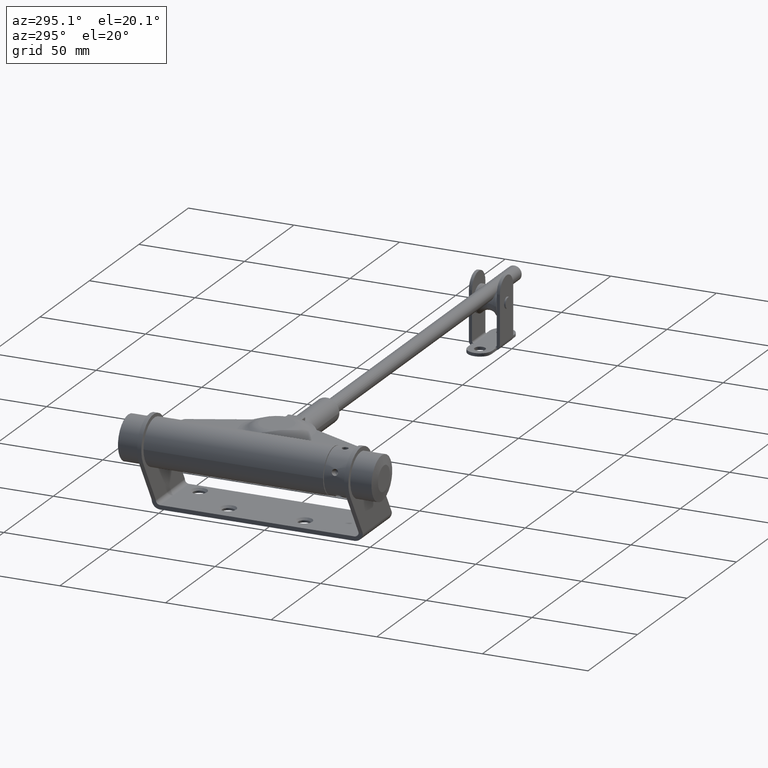
[diagram: clean part render]
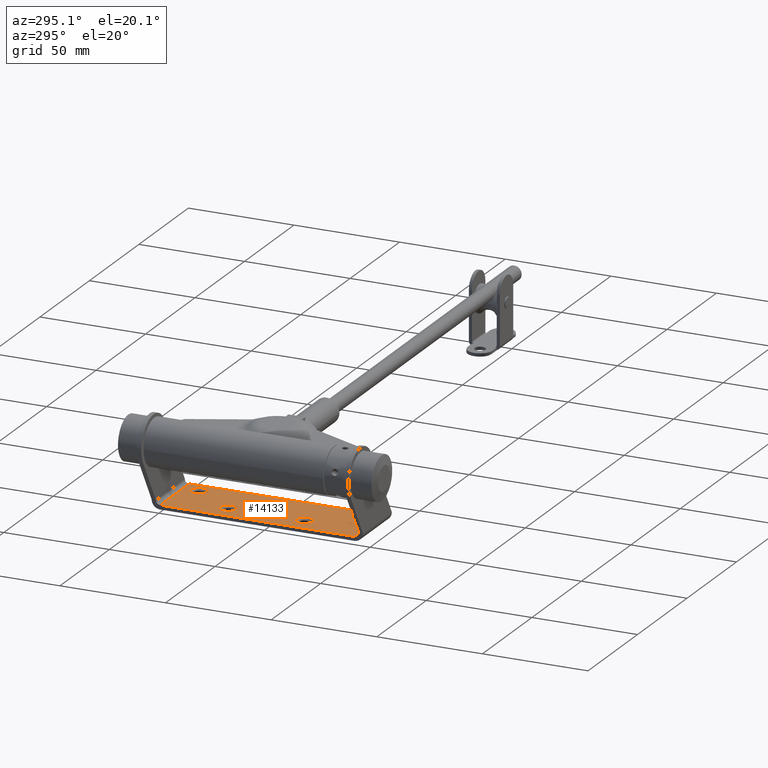
[diagram: same view with one face highlighted and labeled with its STEP entity id]
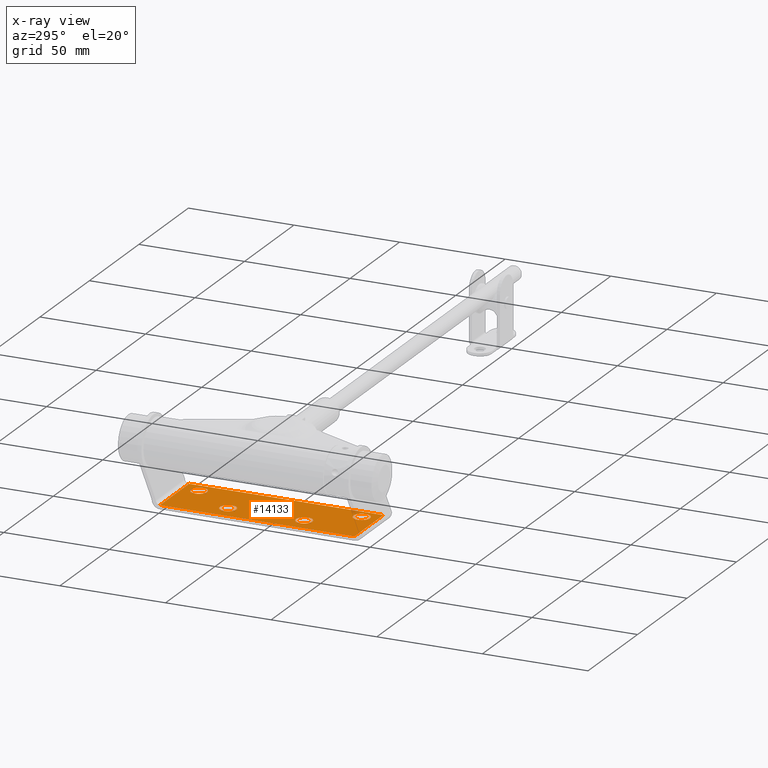
[diagram: x-ray of the same camera — body ghosted, the highlighted face saturated]
A machine part, auxiliary view. The second image highlights one B-rep face of the part: STEP entity #14133.
The next image is the same camera in x-ray: the body ghosted, the highlighted face saturated — about 0% of this face is hidden behind the body in this view.
In plain terms, the highlighted planar face has unit normal (0, 0, -1).
Its self-contained STEP definition (entity closure, byte-faithful):
#246 = ORIENTED_EDGE ( 'NONE', *, *, #25010, .F. ) ;
#448 = CIRCLE ( 'NONE', #23169, 3.900000000000000799 ) ;
#486 = CARTESIAN_POINT ( 'NONE',  ( 16.00000000000000000, 38.50000000000000000, 1.999999999999986233 ) ) ;
#1011 = DIRECTION ( 'NONE',  ( -0.000000000000000000, -0.000000000000000000, -1.000000000000000000 ) ) ;
#1058 = CARTESIAN_POINT ( 'NONE',  ( 22.00000000000000000, 50.00000000000000711, 1.999999999999986233 ) ) ;
#1075 = VERTEX_POINT ( 'NONE', #11453 ) ;
#1241 = AXIS2_PLACEMENT_3D ( 'NONE', #13183, #11235, #11411 ) ;
#1296 = EDGE_CURVE ( 'NONE', #13426, #15920, #17571, .T. ) ;
#1425 = AXIS2_PLACEMENT_3D ( 'NONE', #16783, #10677, #6777 ) ;
#1708 = EDGE_CURVE ( 'NONE', #12903, #7348, #9322, .T. ) ;
#2165 = VECTOR ( 'NONE', #16100, 1000.000000000000000 ) ;
#2171 = FACE_BOUND ( 'NONE', #8345, .T. ) ;
#2594 = DIRECTION ( 'NONE',  ( -1.000000000000000000, 0.000000000000000000, 0.000000000000000000 ) ) ;
#2804 = FACE_BOUND ( 'NONE', #23776, .T. ) ;
#2887 = ORIENTED_EDGE ( 'NONE', *, *, #14333, .T. ) ;
#3062 = EDGE_CURVE ( 'NONE', #3889, #1075, #448, .T. ) ;
#3327 = CARTESIAN_POINT ( 'NONE',  ( -2.215945985420102904, -18.00000000000000000, 1.999999999999986233 ) ) ;
#3798 = VERTEX_POINT ( 'NONE', #9489 ) ;
#3889 = VERTEX_POINT ( 'NONE', #12321 ) ;
#3962 = CARTESIAN_POINT ( 'NONE',  ( 15.99999999999998934, -38.50000000000000000, 1.999999999999986233 ) ) ;
#4290 = CARTESIAN_POINT ( 'NONE',  ( 22.00000000000000000, -46.00000000000002132, 1.999999999999986233 ) ) ;
#4378 = ORIENTED_EDGE ( 'NONE', *, *, #23877, .T. ) ;
#4416 = LINE ( 'NONE', #7993, #2165 ) ;
#4625 = CARTESIAN_POINT ( 'NONE',  ( 22.00000000000000000, 46.00000000000001421, 1.999999999999986233 ) ) ;
#5207 = CARTESIAN_POINT ( 'NONE',  ( 22.00000000000000000, -46.00000000000002132, 1.999999999999986233 ) ) ;
#5227 = EDGE_LOOP ( 'NONE', ( #12866, #246, #7263, #18026 ) ) ;
#5338 = FACE_OUTER_BOUND ( 'NONE', #5227, .T. ) ;
#5989 = DIRECTION ( 'NONE',  ( -1.000000000000000000, 0.000000000000000000, 0.000000000000000000 ) ) ;
#6464 = VECTOR ( 'NONE', #18413, 1000.000000000000000 ) ;
#6777 = DIRECTION ( 'NONE',  ( -1.000000000000000000, 0.000000000000000000, 0.000000000000000000 ) ) ;
#6858 = EDGE_CURVE ( 'NONE', #10360, #18448, #18776, .T. ) ;
#6900 = CIRCLE ( 'NONE', #1241, 3.900000000000014566 ) ;
#6908 = DIRECTION ( 'NONE',  ( -0.000000000000000000, -0.000000000000000000, -1.000000000000000000 ) ) ;
#6910 = DIRECTION ( 'NONE',  ( -0.000000000000000000, -0.000000000000000000, -1.000000000000000000 ) ) ;
#7148 = DIRECTION ( 'NONE',  ( -1.000000000000000000, 0.000000000000000000, 0.000000000000000000 ) ) ;
#7263 = ORIENTED_EDGE ( 'NONE', *, *, #1708, .F. ) ;
#7269 = ORIENTED_EDGE ( 'NONE', *, *, #10750, .T. ) ;
#7348 = VERTEX_POINT ( 'NONE', #5207 ) ;
#7524 = ORIENTED_EDGE ( 'NONE', *, *, #12915, .T. ) ;
#7727 = LINE ( 'NONE', #4290, #6464 ) ;
#7756 = ORIENTED_EDGE ( 'NONE', *, *, #1296, .T. ) ;
#7993 = CARTESIAN_POINT ( 'NONE',  ( -7.315945985420096775, 50.00000000000001421, 1.999999999999986233 ) ) ;
#8198 = FACE_BOUND ( 'NONE', #11052, .T. ) ;
#8345 = EDGE_LOOP ( 'NONE', ( #2887, #7756 ) ) ;
#8429 = DIRECTION ( 'NONE',  ( -0.000000000000000000, -1.000000000000000000, -0.000000000000000000 ) ) ;
#8895 = DIRECTION ( 'NONE',  ( -0.000000000000000000, -0.000000000000000000, -1.000000000000000000 ) ) ;
#9322 = LINE ( 'NONE', #24701, #14993 ) ;
#9489 = CARTESIAN_POINT ( 'NONE',  ( -7.315945985420096775, 46.00000000000001421, 1.999999999999986233 ) ) ;
#9793 = CARTESIAN_POINT ( 'NONE',  ( 15.99999999999998934, -38.50000000000000000, 1.999999999999986233 ) ) ;
#10360 = VERTEX_POINT ( 'NONE', #14000 ) ;
#10677 = DIRECTION ( 'NONE',  ( -0.000000000000000000, -0.000000000000000000, -1.000000000000000000 ) ) ;
#10750 = EDGE_CURVE ( 'NONE', #15897, #25966, #18658, .T. ) ;
#10972 = DIRECTION ( 'NONE',  ( -1.000000000000000000, 0.000000000000000000, 0.000000000000000000 ) ) ;
#11052 = EDGE_LOOP ( 'NONE', ( #23455, #4378 ) ) ;
#11080 = AXIS2_PLACEMENT_3D ( 'NONE', #9793, #17735, #21986 ) ;
#11219 = PLANE ( 'NONE',  #20077 ) ;
#11235 = DIRECTION ( 'NONE',  ( -0.000000000000000000, -0.000000000000000000, -1.000000000000000000 ) ) ;
#11411 = DIRECTION ( 'NONE',  ( -1.000000000000000000, 0.000000000000000000, 0.000000000000000000 ) ) ;
#11453 = CARTESIAN_POINT ( 'NONE',  ( 19.89999999999999147, -38.50000000000000000, 1.999999999999986233 ) ) ;
#11938 = AXIS2_PLACEMENT_3D ( 'NONE', #20965, #6908, #10972 ) ;
#12220 = AXIS2_PLACEMENT_3D ( 'NONE', #12947, #1011, #15111 ) ;
#12321 = CARTESIAN_POINT ( 'NONE',  ( 12.09999999999998899, -38.50000000000000000, 1.999999999999986233 ) ) ;
#12616 = EDGE_CURVE ( 'NONE', #3798, #24562, #4416, .T. ) ;
#12764 = AXIS2_PLACEMENT_3D ( 'NONE', #24459, #8895, #12968 ) ;
#12817 = CARTESIAN_POINT ( 'NONE',  ( 5.584054014579916903, 18.00000000000000000, 1.999999999999986233 ) ) ;
#12866 = ORIENTED_EDGE ( 'NONE', *, *, #12616, .T. ) ;
#12903 = VERTEX_POINT ( 'NONE', #4625 ) ;
#12915 = EDGE_CURVE ( 'NONE', #25966, #15897, #6900, .T. ) ;
#12936 = VECTOR ( 'NONE', #15004, 1000.000000000000000 ) ;
#12947 = CARTESIAN_POINT ( 'NONE',  ( 1.684054014579897895, -18.00000000000000000, 1.999999999999986233 ) ) ;
#12968 = DIRECTION ( 'NONE',  ( -1.000000000000000000, 0.000000000000000000, 0.000000000000000000 ) ) ;
#13183 = CARTESIAN_POINT ( 'NONE',  ( 1.684054014579902336, 18.00000000000000000, 1.999999999999986233 ) ) ;
#13231 = CIRCLE ( 'NONE', #1425, 3.900000000000000799 ) ;
#13426 = VERTEX_POINT ( 'NONE', #14606 ) ;
#13561 = FACE_BOUND ( 'NONE', #18507, .T. ) ;
#14000 = CARTESIAN_POINT ( 'NONE',  ( 5.584054014579898251, -18.00000000000000000, 1.999999999999986233 ) ) ;
#14070 = EDGE_CURVE ( 'NONE', #12903, #3798, #19553, .T. ) ;
#14133 = ADVANCED_FACE ( 'NONE', ( #13561, #8198, #2804, #2171, #5338 ), #11219, .F. ) ;
#14333 = EDGE_CURVE ( 'NONE', #15920, #13426, #13231, .T. ) ;
#14459 = CARTESIAN_POINT ( 'NONE',  ( -7.315945985420118092, -46.00000000000001421, 1.999999999999986233 ) ) ;
#14606 = CARTESIAN_POINT ( 'NONE',  ( 12.09999999999999964, 38.50000000000000000, 1.999999999999986233 ) ) ;
#14821 = CARTESIAN_POINT ( 'NONE',  ( 19.90000000000000213, 38.50000000000000000, 1.999999999999986233 ) ) ;
#14993 = VECTOR ( 'NONE', #8429, 1000.000000000000000 ) ;
#15004 = DIRECTION ( 'NONE',  ( -1.000000000000000000, -0.000000000000000000, -0.000000000000000000 ) ) ;
#15080 = CARTESIAN_POINT ( 'NONE',  ( 22.00000000000000000, 46.00000000000001421, 1.999999999999986233 ) ) ;
#15111 = DIRECTION ( 'NONE',  ( -1.000000000000000000, 0.000000000000000000, 0.000000000000000000 ) ) ;
#15897 = VERTEX_POINT ( 'NONE', #12817 ) ;
#15920 = VERTEX_POINT ( 'NONE', #14821 ) ;
#16100 = DIRECTION ( 'NONE',  ( -2.081668171172168020E-16, -1.000000000000000000, 0.000000000000000000 ) ) ;
#16783 = CARTESIAN_POINT ( 'NONE',  ( 16.00000000000000000, 38.50000000000000000, 1.999999999999986233 ) ) ;
#17309 = DIRECTION ( 'NONE',  ( -0.000000000000000000, 0.000000000000000000, -1.000000000000000000 ) ) ;
#17571 = CIRCLE ( 'NONE', #19963, 3.900000000000000799 ) ;
#17735 = DIRECTION ( 'NONE',  ( -0.000000000000000000, -0.000000000000000000, -1.000000000000000000 ) ) ;
#18026 = ORIENTED_EDGE ( 'NONE', *, *, #14070, .T. ) ;
#18073 = DIRECTION ( 'NONE',  ( -0.000000000000000000, -0.000000000000000000, -1.000000000000000000 ) ) ;
#18413 = DIRECTION ( 'NONE',  ( -1.000000000000000000, -0.000000000000000000, -0.000000000000000000 ) ) ;
#18448 = VERTEX_POINT ( 'NONE', #3327 ) ;
#18507 = EDGE_LOOP ( 'NONE', ( #25473, #25100 ) ) ;
#18658 = CIRCLE ( 'NONE', #12764, 3.900000000000014566 ) ;
#18776 = CIRCLE ( 'NONE', #12220, 3.900000000000000799 ) ;
#19553 = LINE ( 'NONE', #15080, #12936 ) ;
#19963 = AXIS2_PLACEMENT_3D ( 'NONE', #486, #6910, #2594 ) ;
#20077 = AXIS2_PLACEMENT_3D ( 'NONE', #1058, #17309, #7148 ) ;
#20754 = CIRCLE ( 'NONE', #11080, 3.900000000000000799 ) ;
#20965 = CARTESIAN_POINT ( 'NONE',  ( 1.684054014579897895, -18.00000000000000000, 1.999999999999986233 ) ) ;
#21642 = EDGE_CURVE ( 'NONE', #1075, #3889, #20754, .T. ) ;
#21986 = DIRECTION ( 'NONE',  ( -1.000000000000000000, 0.000000000000000000, 0.000000000000000000 ) ) ;
#23169 = AXIS2_PLACEMENT_3D ( 'NONE', #3962, #18073, #5989 ) ;
#23455 = ORIENTED_EDGE ( 'NONE', *, *, #6858, .T. ) ;
#23776 = EDGE_LOOP ( 'NONE', ( #7269, #7524 ) ) ;
#23877 = EDGE_CURVE ( 'NONE', #18448, #10360, #24222, .T. ) ;
#24222 = CIRCLE ( 'NONE', #11938, 3.900000000000000799 ) ;
#24459 = CARTESIAN_POINT ( 'NONE',  ( 1.684054014579902336, 18.00000000000000000, 1.999999999999986233 ) ) ;
#24562 = VERTEX_POINT ( 'NONE', #14459 ) ;
#24701 = CARTESIAN_POINT ( 'NONE',  ( 22.00000000000000000, 50.00000000000000711, 1.999999999999986233 ) ) ;
#24992 = CARTESIAN_POINT ( 'NONE',  ( -2.215945985420112230, 18.00000000000000000, 1.999999999999986233 ) ) ;
#25010 = EDGE_CURVE ( 'NONE', #7348, #24562, #7727, .T. ) ;
#25100 = ORIENTED_EDGE ( 'NONE', *, *, #3062, .T. ) ;
#25473 = ORIENTED_EDGE ( 'NONE', *, *, #21642, .T. ) ;
#25966 = VERTEX_POINT ( 'NONE', #24992 ) ;